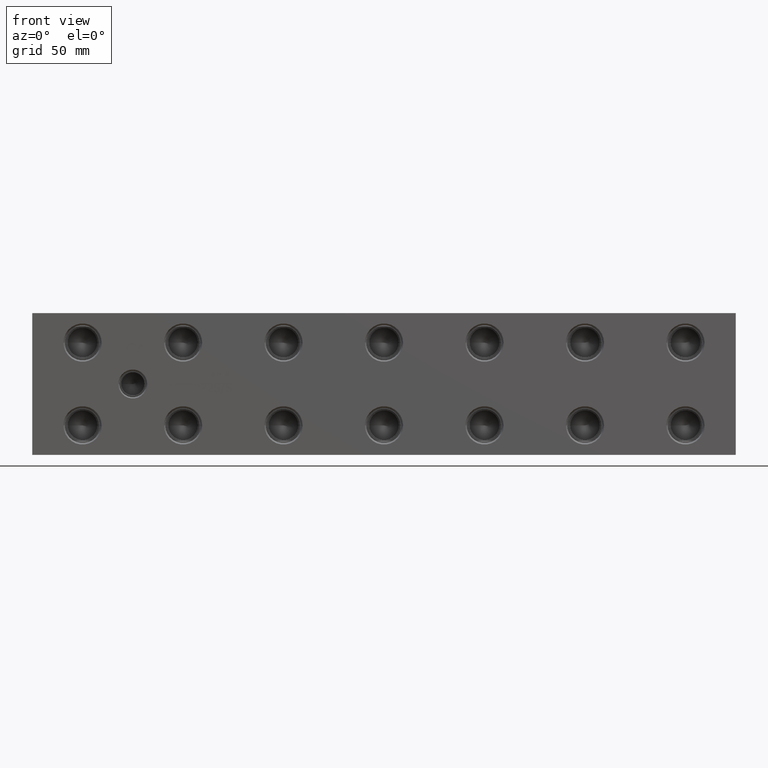
[diagram: clean part render]
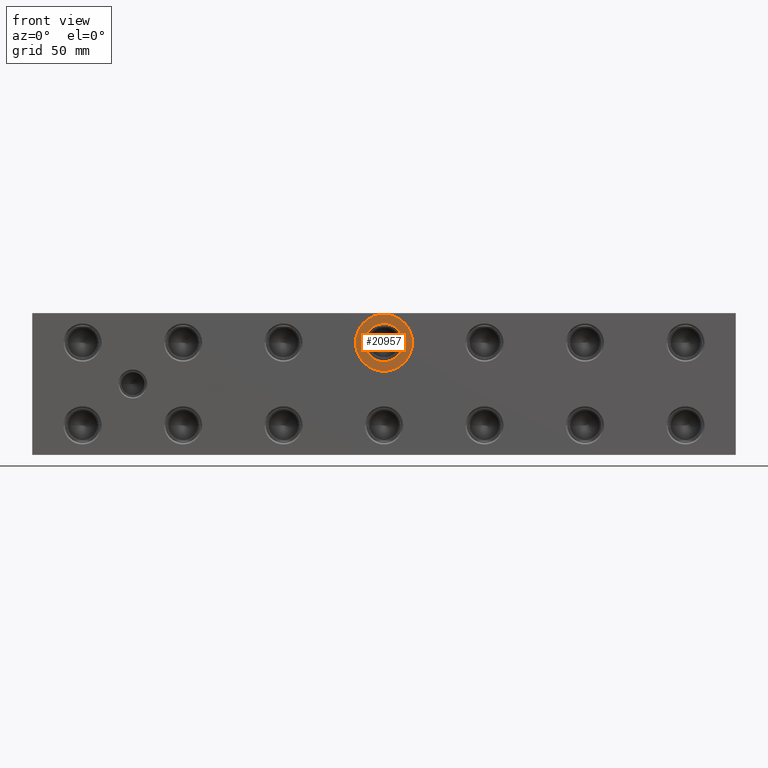
[diagram: same view with one face highlighted and labeled with its STEP entity id]
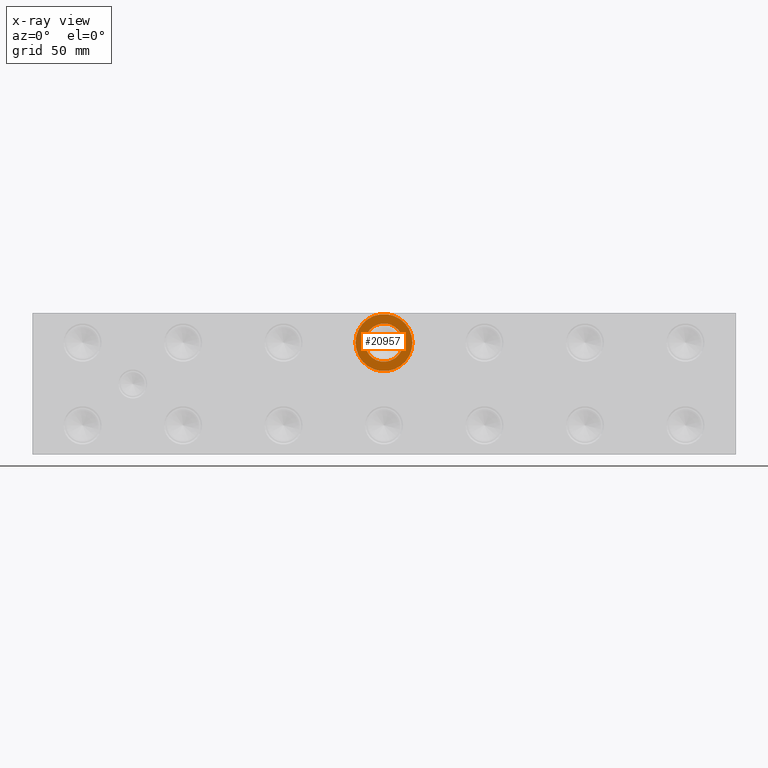
[diagram: x-ray of the same camera — body ghosted, the highlighted face saturated]
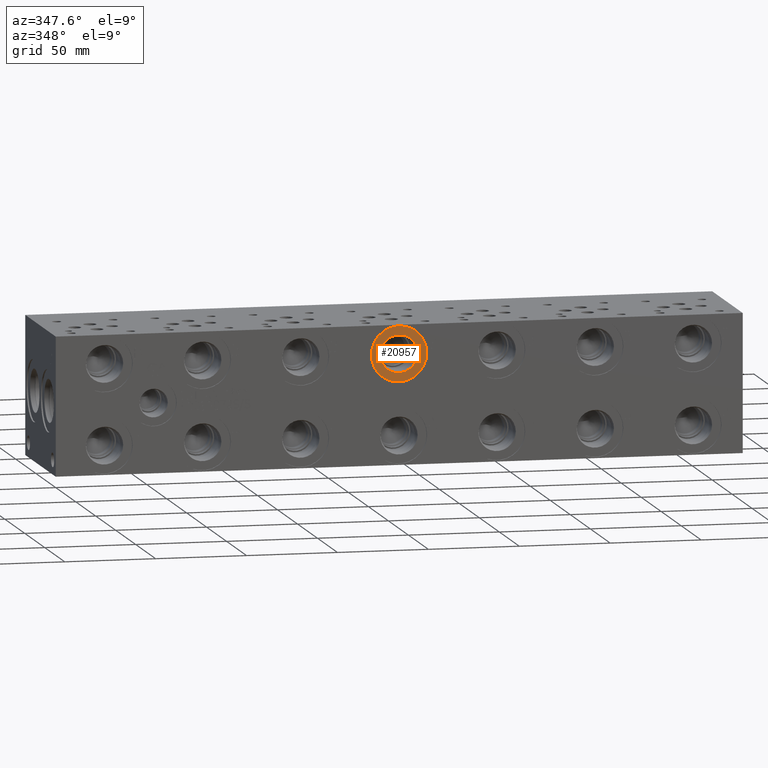
[diagram: same view with one face highlighted and labeled with its STEP entity id]
A machine part, front view. The second image highlights one B-rep face of the part: STEP entity #20957.
The next image is the same camera in x-ray: the body ghosted, the highlighted face saturated — about 0% of this face is hidden behind the body in this view.
A second angle (auxiliary view) of the same face is appended — the face is thin or edge-on in the first view.
In plain terms, the highlighted planar face has unit normal (0, 1, 0).
Its self-contained STEP definition (entity closure, byte-faithful):
#406=CIRCLE('',#21898,15.3162);
#407=CIRCLE('',#21899,15.3162);
#408=CIRCLE('',#21901,10.2997);
#409=CIRCLE('',#21902,10.2997);
#1207=FACE_BOUND('',#3788,.T.);
#1800=PLANE('',#21900);
#2574=FACE_OUTER_BOUND('',#3787,.T.);
#3787=EDGE_LOOP('',(#17185,#17186));
#3788=EDGE_LOOP('',(#17187,#17188));
#9626=VERTEX_POINT('',#35065);
#9627=VERTEX_POINT('',#35067);
#9628=VERTEX_POINT('',#35071);
#9629=VERTEX_POINT('',#35072);
#12346=EDGE_CURVE('',#9626,#9627,#406,.T.);
#12347=EDGE_CURVE('',#9627,#9626,#407,.T.);
#12348=EDGE_CURVE('',#9628,#9629,#408,.T.);
#12349=EDGE_CURVE('',#9629,#9628,#409,.T.);
#17185=ORIENTED_EDGE('',*,*,#12347,.F.);
#17186=ORIENTED_EDGE('',*,*,#12346,.F.);
#17187=ORIENTED_EDGE('',*,*,#12348,.T.);
#17188=ORIENTED_EDGE('',*,*,#12349,.T.);
#20957=ADVANCED_FACE('',(#2574,#1207),#1800,.F.);
#21898=AXIS2_PLACEMENT_3D('',#35068,#25441,#25442);
#21899=AXIS2_PLACEMENT_3D('',#35069,#25443,#25444);
#21900=AXIS2_PLACEMENT_3D('',#35070,#25445,#25446);
#21901=AXIS2_PLACEMENT_3D('',#35073,#25447,#25448);
#21902=AXIS2_PLACEMENT_3D('',#35074,#25449,#25450);
#25441=DIRECTION('center_axis',(0.,1.,0.));
#25442=DIRECTION('ref_axis',(1.,0.,0.));
#25443=DIRECTION('center_axis',(0.,1.,0.));
#25444=DIRECTION('ref_axis',(1.,0.,0.));
#25445=DIRECTION('center_axis',(0.,1.,0.));
#25446=DIRECTION('ref_axis',(0.,0.,1.));
#25447=DIRECTION('center_axis',(0.,1.,0.));
#25448=DIRECTION('ref_axis',(1.,0.,0.));
#25449=DIRECTION('center_axis',(0.,1.,0.));
#25450=DIRECTION('ref_axis',(1.,0.,0.));
#35065=CARTESIAN_POINT('',(173.5836,0.7874,60.325));
#35067=CARTESIAN_POINT('',(204.216,0.7874,60.325));
#35068=CARTESIAN_POINT('Origin',(188.8998,0.7874,60.325));
#35069=CARTESIAN_POINT('Origin',(188.8998,0.7874,60.325));
#35070=CARTESIAN_POINT('Origin',(199.1995,0.7874,60.325));
#35071=CARTESIAN_POINT('',(199.1995,0.7874,60.325));
#35072=CARTESIAN_POINT('',(178.6001,0.7874,60.325));
#35073=CARTESIAN_POINT('Origin',(188.8998,0.7874,60.325));
#35074=CARTESIAN_POINT('Origin',(188.8998,0.7874,60.325));